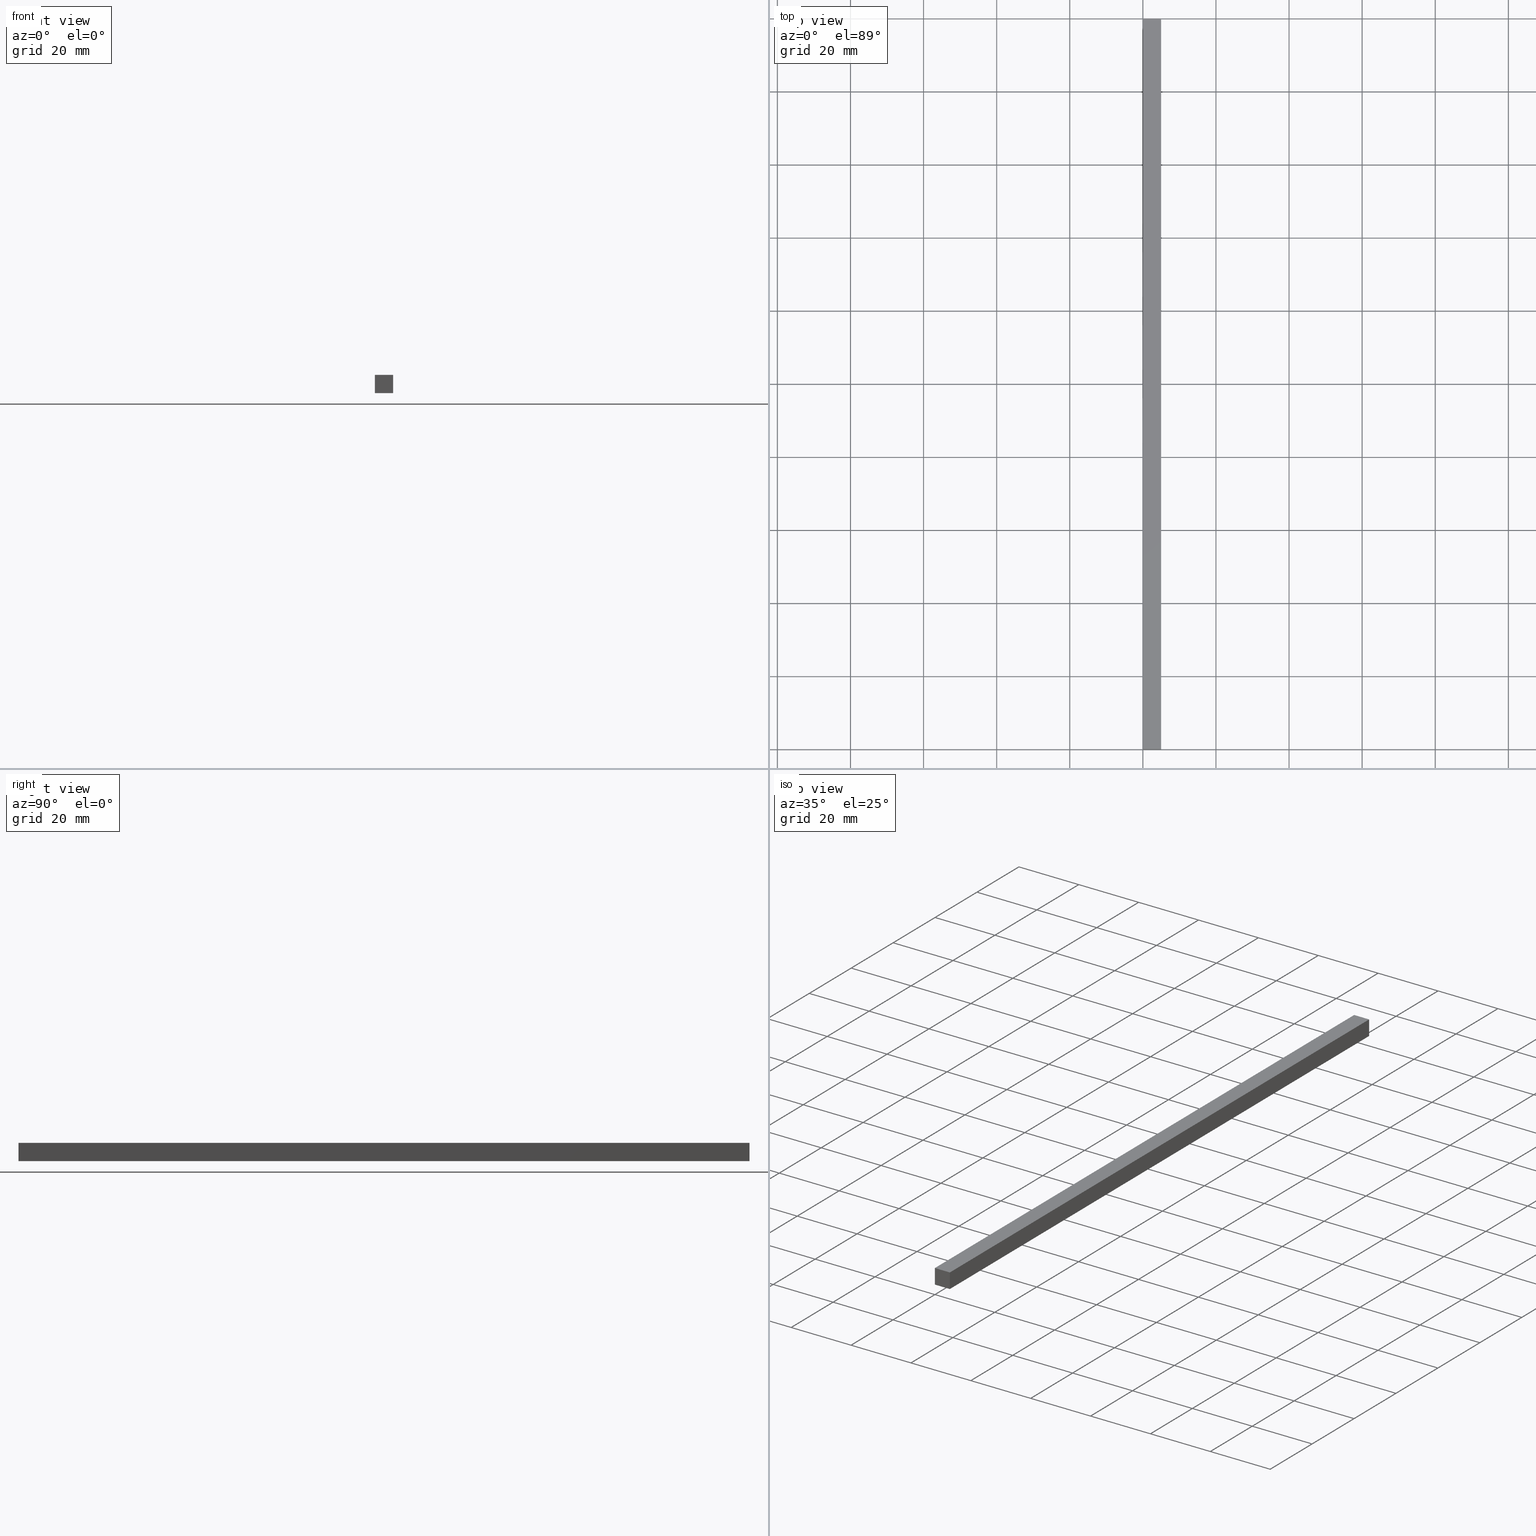
[diagram: canonical four-view strip — front | top / right | iso, engineering-drawing reading convention]
A machine part, canonical four-view strip (front | top / right | iso — engineering-drawing reading convention). The complete STEP part file that produces these views, byte-faithful:
ISO-10303-21;
HEADER;
FILE_DESCRIPTION (( 'STEP AP214' ),
    '1' );
FILE_NAME ('TM_340_1.STEP',
    '2016-05-09T04:52:56',
    ( '' ),
    ( '' ),
    'SwSTEP 2.0',
    'SolidWorks 2015',
    '' );
FILE_SCHEMA (( 'AUTOMOTIVE_DESIGN' ));
ENDSEC;

DATA;
#1 = ADVANCED_FACE ( 'NONE', ( #51 ), #197, .F. ) ;
#2 = ORIENTED_EDGE ( 'NONE', *, *, #146, .T. ) ;
#3 = LINE ( 'NONE', #97, #109 ) ;
#4 = SURFACE_STYLE_FILL_AREA ( #151 ) ;
#5 = CARTESIAN_POINT ( 'NONE',  ( 5.000000000000000000, 0.0000000000000000000, 0.0000000000000000000 ) ) ;
#6 = CARTESIAN_POINT ( 'NONE',  ( 0.0000000000000000000, 200.0000000000000000, 0.0000000000000000000 ) ) ;
#7 = CARTESIAN_POINT ( 'NONE',  ( 0.0000000000000000000, 0.0000000000000000000, 0.0000000000000000000 ) ) ;
#8 = VECTOR ( 'NONE', #236, 1000.000000000000000 ) ;
#9 = CARTESIAN_POINT ( 'NONE',  ( 0.0000000000000000000, 200.0000000000000000, 0.0000000000000000000 ) ) ;
#10 = AXIS2_PLACEMENT_3D ( 'NONE', #189, #136, #106 ) ;
#11 = VECTOR ( 'NONE', #119, 1000.000000000000000 ) ;
#12 = VECTOR ( 'NONE', #64, 1000.000000000000000 ) ;
#13 = EDGE_CURVE ( 'NONE', #90, #204, #47, .T. ) ;
#14 = ADVANCED_FACE ( 'NONE', ( #152 ), #157, .F. ) ;
#15 = ITEM_DEFINED_TRANSFORMATION ( 'NONE', 'NONE', #95,  #10 ) ;
#16 = ORIENTED_EDGE ( 'NONE', *, *, #22, .F. ) ;
#17 = LINE ( 'NONE', #173, #60 ) ;
#18 = STYLED_ITEM ( 'NONE', ( #185 ), #175 ) ;
#19 = DIRECTION ( 'NONE',  ( 0.0000000000000000000, 0.0000000000000000000, 1.000000000000000000 ) ) ;
#20 = LINE ( 'NONE', #121, #12 ) ;
#21 = CARTESIAN_POINT ( 'NONE',  ( 5.000000000000000000, 1000.000000000000000, 0.0000000000000000000 ) ) ;
#22 = EDGE_CURVE ( 'NONE', #30, #212, #214, .T. ) ;
#23 = SURFACE_SIDE_STYLE ('',( #4 ) ) ;
#24 = PRODUCT_CONTEXT ( 'NONE', #180, 'mechanical' ) ;
#25 = CARTESIAN_POINT ( 'NONE',  ( 0.0000000000000000000, 1000.000000000000000, 0.0000000000000000000 ) ) ;
#26 = ORIENTED_EDGE ( 'NONE', *, *, #94, .T. ) ;
#27 = AXIS2_PLACEMENT_3D ( 'NONE', #7, #39, #198 ) ;
#28 = EDGE_CURVE ( 'NONE', #224, #30, #57, .T. ) ;
#29 = ORIENTED_EDGE ( 'NONE', *, *, #13, .T. ) ;
#30 = VERTEX_POINT ( 'NONE', #219 ) ;
#31 = PRESENTATION_LAYER_ASSIGNMENT (  '', '', ( #18 ) ) ;
#32 = EDGE_CURVE ( 'NONE', #212, #237, #221, .T. ) ;
#33 = EDGE_LOOP ( 'NONE', ( #142, #131, #93, #26 ) ) ;
#34 = COLOUR_RGB ( '',0.7921568627450980000, 0.8196078431372548800, 0.9333333333333333500 ) ;
#35 = EDGE_LOOP ( 'NONE', ( #209, #76, #128, #71 ) ) ;
#36 =( NAMED_UNIT ( * ) PLANE_ANGLE_UNIT ( ) SI_UNIT ( $, .RADIAN. ) );
#37 = PLANE ( 'NONE',  #113 ) ;
#38 = CARTESIAN_POINT ( 'NONE',  ( 0.0000000000000000000, 0.0000000000000000000, 0.0000000000000000000 ) ) ;
#39 = DIRECTION ( 'NONE',  ( -0.0000000000000000000, 1.000000000000000000, 0.0000000000000000000 ) ) ;
#40 = DIRECTION ( 'NONE',  ( 0.0000000000000000000, 0.0000000000000000000, 1.000000000000000000 ) ) ;
#41 = EDGE_LOOP ( 'NONE', ( #49, #144, #148, #84 ) ) ;
#42 = CARTESIAN_POINT ( 'NONE',  ( 0.0000000000000000000, 0.0000000000000000000, 5.000000000000000000 ) ) ;
#43 =( GEOMETRIC_REPRESENTATION_CONTEXT ( 3 ) GLOBAL_UNCERTAINTY_ASSIGNED_CONTEXT ( ( #238 ) ) GLOBAL_UNIT_ASSIGNED_CONTEXT ( ( #158, #150, #78 ) ) REPRESENTATION_CONTEXT ( 'NONE', 'WORKASPACE' ) );
#44 = FACE_OUTER_BOUND ( 'NONE', #104, .T. ) ;
#45 = MECHANICAL_DESIGN_GEOMETRIC_PRESENTATION_REPRESENTATION (  '', ( #18 ), #43 ) ;
#46 = DIRECTION ( 'NONE',  ( 1.000000000000000000, 0.0000000000000000000, 0.0000000000000000000 ) ) ;
#47 = LINE ( 'NONE', #107, #72 ) ;
#48 = EDGE_CURVE ( 'NONE', #237, #200, #162, .T. ) ;
#49 = ORIENTED_EDGE ( 'NONE', *, *, #205, .T. ) ;
#50 = LINE ( 'NONE', #5, #8 ) ;
#51 = FACE_OUTER_BOUND ( 'NONE', #41, .T. ) ;
#52 = SHAPE_REPRESENTATION_RELATIONSHIP ( 'NONE' , 'NONE' ,  #171, #175 ) ;
#53 = CARTESIAN_POINT ( 'NONE',  ( 0.0000000000000000000, 0.0000000000000000000, 0.0000000000000000000 ) ) ;
#54 = CARTESIAN_POINT ( 'NONE',  ( 5.000000000000000000, 0.0000000000000000000, 5.000000000000000000 ) ) ;
#55 = DIRECTION ( 'NONE',  ( 1.000000000000000000, 0.0000000000000000000, 0.0000000000000000000 ) ) ;
#56 = DIRECTION ( 'NONE',  ( -0.0000000000000000000, 1.000000000000000000, 0.0000000000000000000 ) ) ;
#57 = LINE ( 'NONE', #154, #11 ) ;
#58 = UNCERTAINTY_MEASURE_WITH_UNIT (LENGTH_MEASURE( 1.000000000000000100E-005 ), #192, 'distance_accuracy_value', 'NONE');
#59 = FILL_AREA_STYLE ('',( #232 ) ) ;
#60 = VECTOR ( 'NONE', #140, 1000.000000000000000 ) ;
#61 = VECTOR ( 'NONE', #194, 1000.000000000000000 ) ;
#62 = DIRECTION ( 'NONE',  ( 0.0000000000000000000, -1.000000000000000000, 0.0000000000000000000 ) ) ;
#63 = APPLICATION_PROTOCOL_DEFINITION ( 'draft international standard', 'automotive_design', 1998, #217 ) ;
#64 = DIRECTION ( 'NONE',  ( 0.0000000000000000000, -1.000000000000000000, 0.0000000000000000000 ) ) ;
#65 =( REPRESENTATION_RELATIONSHIP ('NONE','NONE', #168, #171 ) REPRESENTATION_RELATIONSHIP_WITH_TRANSFORMATION ( #15 )SHAPE_REPRESENTATION_RELATIONSHIP( ) );
#66 = AXIS2_PLACEMENT_3D ( 'NONE', #99, #86, #46 ) ;
#67 = DIRECTION ( 'NONE',  ( 0.0000000000000000000, 0.0000000000000000000, -1.000000000000000000 ) ) ;
#68 = PRODUCT_DEFINITION_SHAPE ( 'NONE', 'NONE',  #132 ) ;
#69 = FACE_OUTER_BOUND ( 'NONE', #182, .T. ) ;
#70 = EDGE_CURVE ( 'NONE', #30, #90, #73, .T. ) ;
#71 = ORIENTED_EDGE ( 'NONE', *, *, #22, .T. ) ;
#72 = VECTOR ( 'NONE', #67, 1000.000000000000000 ) ;
#73 = LINE ( 'NONE', #201, #89 ) ;
#74 = ADVANCED_FACE ( 'NONE', ( #44 ), #37, .T. ) ;
#75 = CARTESIAN_POINT ( 'NONE',  ( 0.0000000000000000000, 0.0000000000000000000, 0.0000000000000000000 ) ) ;
#76 = ORIENTED_EDGE ( 'NONE', *, *, #94, .F. ) ;
#77 = CARTESIAN_POINT ( 'NONE',  ( 5.000000000000000000, 200.0000000000000000, 5.000000000000000000 ) ) ;
#78 =( NAMED_UNIT ( * ) SI_UNIT ( $, .STERADIAN. ) SOLID_ANGLE_UNIT ( ) );
#79 = DIRECTION ( 'NONE',  ( -1.000000000000000000, 0.0000000000000000000, 0.0000000000000000000 ) ) ;
#80 = STYLED_ITEM ( 'NONE', ( #110 ), #130 ) ;
#81 = DIRECTION ( 'NONE',  ( 0.0000000000000000000, 0.0000000000000000000, -1.000000000000000000 ) ) ;
#82 =( LENGTH_UNIT ( ) NAMED_UNIT ( * ) SI_UNIT ( .MILLI., .METRE. ) );
#83 = PRODUCT_CONTEXT ( 'NONE', #217, 'mechanical' ) ;
#84 = ORIENTED_EDGE ( 'NONE', *, *, #137, .T. ) ;
#85 = AXIS2_PLACEMENT_3D ( 'NONE', #75, #123, #55 ) ;
#86 = DIRECTION ( 'NONE',  ( 0.0000000000000000000, 0.0000000000000000000, 1.000000000000000000 ) ) ;
#87 = AXIS2_PLACEMENT_3D ( 'NONE', #213, #228, #115 ) ;
#88 = UNCERTAINTY_MEASURE_WITH_UNIT (LENGTH_MEASURE( 1.000000000000000100E-005 ), #82, 'distance_accuracy_value', 'NONE');
#89 = VECTOR ( 'NONE', #116, 1000.000000000000000 ) ;
#90 = VERTEX_POINT ( 'NONE', #77 ) ;
#91 = SHAPE_DEFINITION_REPRESENTATION ( #163, #168 ) ;
#92 = PRODUCT_DEFINITION_CONTEXT ( 'detailed design', #199, 'design' ) ;
#93 = ORIENTED_EDGE ( 'NONE', *, *, #13, .F. ) ;
#94 = EDGE_CURVE ( 'NONE', #90, #237, #225, .T. ) ;
#95 = AXIS2_PLACEMENT_3D ( 'NONE', #53, #195, #100 ) ;
#96 = PLANE ( 'NONE',  #87 ) ;
#97 = CARTESIAN_POINT ( 'NONE',  ( 5.000000000000000000, 200.0000000000000000, 0.0000000000000000000 ) ) ;
#98 = ORIENTED_EDGE ( 'NONE', *, *, #48, .F. ) ;
#99 = CARTESIAN_POINT ( 'NONE',  ( 5.000000000000000000, 1000.000000000000000, 0.0000000000000000000 ) ) ;
#100 = DIRECTION ( 'NONE',  ( 1.000000000000000000, 0.0000000000000000000, 0.0000000000000000000 ) ) ;
#101 =( NAMED_UNIT ( * ) PLANE_ANGLE_UNIT ( ) SI_UNIT ( $, .RADIAN. ) );
#102 = DIRECTION ( 'NONE',  ( 1.000000000000000000, 0.0000000000000000000, 0.0000000000000000000 ) ) ;
#103 =( NAMED_UNIT ( * ) SI_UNIT ( $, .STERADIAN. ) SOLID_ANGLE_UNIT ( ) );
#104 = EDGE_LOOP ( 'NONE', ( #164, #29, #129, #184 ) ) ;
#105 = CARTESIAN_POINT ( 'NONE',  ( 5.000000000000000000, 0.0000000000000000000, 5.000000000000000000 ) ) ;
#106 = DIRECTION ( 'NONE',  ( 1.000000000000000000, 0.0000000000000000000, 0.0000000000000000000 ) ) ;
#107 = CARTESIAN_POINT ( 'NONE',  ( 5.000000000000000000, 200.0000000000000000, 5.000000000000000000 ) ) ;
#108 =( LENGTH_UNIT ( ) NAMED_UNIT ( * ) SI_UNIT ( .MILLI., .METRE. ) );
#109 = VECTOR ( 'NONE', #79, 1000.000000000000000 ) ;
#110 = PRESENTATION_STYLE_ASSIGNMENT (( #179 ) ) ;
#111 =( GEOMETRIC_REPRESENTATION_CONTEXT ( 3 ) GLOBAL_UNCERTAINTY_ASSIGNED_CONTEXT ( ( #58 ) ) GLOBAL_UNIT_ASSIGNED_CONTEXT ( ( #192, #156, #103 ) ) REPRESENTATION_CONTEXT ( 'NONE', 'WORKASPACE' ) );
#112 = COLOUR_RGB ( '',0.7921568627450980000, 0.8196078431372548800, 0.9333333333333333500 ) ;
#113 = AXIS2_PLACEMENT_3D ( 'NONE', #6, #56, #174 ) ;
#114 = ORIENTED_EDGE ( 'NONE', *, *, #205, .F. ) ;
#115 = DIRECTION ( 'NONE',  ( -1.000000000000000000, 0.0000000000000000000, 0.0000000000000000000 ) ) ;
#116 = DIRECTION ( 'NONE',  ( 1.000000000000000000, 0.0000000000000000000, 0.0000000000000000000 ) ) ;
#117 =( NAMED_UNIT ( * ) SI_UNIT ( $, .STERADIAN. ) SOLID_ANGLE_UNIT ( ) );
#118 = LINE ( 'NONE', #21, #166 ) ;
#119 = DIRECTION ( 'NONE',  ( 0.0000000000000000000, 0.0000000000000000000, 1.000000000000000000 ) ) ;
#120 = SURFACE_STYLE_USAGE ( .BOTH. , #177 ) ;
#121 = CARTESIAN_POINT ( 'NONE',  ( 0.0000000000000000000, 1000.000000000000000, 0.0000000000000000000 ) ) ;
#122 = APPLICATION_PROTOCOL_DEFINITION ( 'draft international standard', 'automotive_design', 1998, #199 ) ;
#123 = DIRECTION ( 'NONE',  ( 0.0000000000000000000, 0.0000000000000000000, 1.000000000000000000 ) ) ;
#124 = AXIS2_PLACEMENT_3D ( 'NONE', #125, #40, #139 ) ;
#125 = CARTESIAN_POINT ( 'NONE',  ( 0.0000000000000000000, 0.0000000000000000000, 0.0000000000000000000 ) ) ;
#126 = FACE_OUTER_BOUND ( 'NONE', #33, .T. ) ;
#127 = PRESENTATION_LAYER_ASSIGNMENT (  '', '', ( #80 ) ) ;
#128 = ORIENTED_EDGE ( 'NONE', *, *, #70, .F. ) ;
#129 = ORIENTED_EDGE ( 'NONE', *, *, #178, .T. ) ;
#130 = MANIFOLD_SOLID_BREP ( '���߰�1', #191 ) ;
#131 = ORIENTED_EDGE ( 'NONE', *, *, #137, .F. ) ;
#132 = PRODUCT_DEFINITION ( 'UNKNOWN', '', #203, #138 ) ;
#133 = CARTESIAN_POINT ( 'NONE',  ( 5.000000000000000000, 0.0000000000000000000, 0.0000000000000000000 ) ) ;
#134 = DIRECTION ( 'NONE',  ( -1.000000000000000000, 0.0000000000000000000, 0.0000000000000000000 ) ) ;
#135 = DIRECTION ( 'NONE',  ( 1.000000000000000000, 0.0000000000000000000, 0.0000000000000000000 ) ) ;
#136 = DIRECTION ( 'NONE',  ( 0.0000000000000000000, 0.0000000000000000000, 1.000000000000000000 ) ) ;
#137 = EDGE_CURVE ( 'NONE', #204, #200, #118, .T. ) ;
#138 = PRODUCT_DEFINITION_CONTEXT ( 'detailed design', #160, 'design' ) ;
#139 = DIRECTION ( 'NONE',  ( 1.000000000000000000, 0.0000000000000000000, 0.0000000000000000000 ) ) ;
#140 = DIRECTION ( 'NONE',  ( 0.0000000000000000000, 0.0000000000000000000, 1.000000000000000000 ) ) ;
#141 = APPLICATION_PROTOCOL_DEFINITION ( 'draft international standard', 'automotive_design', 1998, #180 ) ;
#142 = ORIENTED_EDGE ( 'NONE', *, *, #48, .T. ) ;
#143 = MECHANICAL_DESIGN_GEOMETRIC_PRESENTATION_REPRESENTATION (  '', ( #80 ), #149 ) ;
#144 = ORIENTED_EDGE ( 'NONE', *, *, #188, .F. ) ;
#145 = PRODUCT_DEFINITION_SHAPE ( 'NONE', 'NONE',  #239 ) ;
#146 = EDGE_CURVE ( 'NONE', #169, #212, #17, .T. ) ;
#147 = ADVANCED_FACE ( 'NONE', ( #126 ), #230, .F. ) ;
#148 = ORIENTED_EDGE ( 'NONE', *, *, #178, .F. ) ;
#149 =( GEOMETRIC_REPRESENTATION_CONTEXT ( 3 ) GLOBAL_UNCERTAINTY_ASSIGNED_CONTEXT ( ( #88 ) ) GLOBAL_UNIT_ASSIGNED_CONTEXT ( ( #82, #101, #117 ) ) REPRESENTATION_CONTEXT ( 'NONE', 'WORKASPACE' ) );
#150 =( NAMED_UNIT ( * ) PLANE_ANGLE_UNIT ( ) SI_UNIT ( $, .RADIAN. ) );
#151 = FILL_AREA_STYLE ('',( #211 ) ) ;
#152 = FACE_OUTER_BOUND ( 'NONE', #170, .T. ) ;
#153 = VECTOR ( 'NONE', #216, 1000.000000000000000 ) ;
#154 = CARTESIAN_POINT ( 'NONE',  ( 0.0000000000000000000, 200.0000000000000000, 0.0000000000000000000 ) ) ;
#155 = DIRECTION ( 'NONE',  ( 0.0000000000000000000, -1.000000000000000000, 0.0000000000000000000 ) ) ;
#156 =( NAMED_UNIT ( * ) PLANE_ANGLE_UNIT ( ) SI_UNIT ( $, .RADIAN. ) );
#157 = PLANE ( 'NONE',  #27 ) ;
#158 =( LENGTH_UNIT ( ) NAMED_UNIT ( * ) SI_UNIT ( .MILLI., .METRE. ) );
#159 = CARTESIAN_POINT ( 'NONE',  ( 0.0000000000000000000, 0.0000000000000000000, 5.000000000000000000 ) ) ;
#160 = APPLICATION_CONTEXT ( 'automotive_design' ) ;
#161 = PRODUCT_DEFINITION ( 'UNKNOWN', '', #172, #92 ) ;
#162 = LINE ( 'NONE', #105, #153 ) ;
#163 = PRODUCT_DEFINITION_SHAPE ( 'NONE', 'NONE',  #161 ) ;
#164 = ORIENTED_EDGE ( 'NONE', *, *, #70, .T. ) ;
#165 = VECTOR ( 'NONE', #62, 1000.000000000000000 ) ;
#166 = VECTOR ( 'NONE', #155, 1000.000000000000000 ) ;
#167 = ADVANCED_FACE ( 'NONE', ( #69 ), #231, .F. ) ;
#168 = SHAPE_REPRESENTATION ( 'TM_340_1', ( #124, #95 ), #111 ) ;
#169 = VERTEX_POINT ( 'NONE', #38 ) ;
#170 = EDGE_LOOP ( 'NONE', ( #207, #227, #114, #98 ) ) ;
#171 = SHAPE_REPRESENTATION ( 'rubber foam', ( #10 ), #226 ) ;
#172 = PRODUCT_DEFINITION_FORMATION_WITH_SPECIFIED_SOURCE ( 'ANY', '', #190, .NOT_KNOWN. ) ;
#173 = CARTESIAN_POINT ( 'NONE',  ( 0.0000000000000000000, 0.0000000000000000000, 0.0000000000000000000 ) ) ;
#174 = DIRECTION ( 'NONE',  ( 1.000000000000000000, 0.0000000000000000000, 0.0000000000000000000 ) ) ;
#175 = ADVANCED_BREP_SHAPE_REPRESENTATION ( '', ( #130, #10 ), #226 ) ;
#176 = CARTESIAN_POINT ( 'NONE',  ( 5.000000000000000000, 1000.000000000000000, 5.000000000000000000 ) ) ;
#177 = SURFACE_SIDE_STYLE ('',( #234 ) ) ;
#178 = EDGE_CURVE ( 'NONE', #204, #224, #3, .T. ) ;
#179 = SURFACE_STYLE_USAGE ( .BOTH. , #23 ) ;
#180 = APPLICATION_CONTEXT ( 'automotive_design' ) ;
#181 = APPLICATION_PROTOCOL_DEFINITION ( 'draft international standard', 'automotive_design', 1998, #160 ) ;
#182 = EDGE_LOOP ( 'NONE', ( #2, #16, #206, #233 ) ) ;
#183 = SHAPE_DEFINITION_REPRESENTATION ( #68, #171 ) ;
#184 = ORIENTED_EDGE ( 'NONE', *, *, #28, .T. ) ;
#185 = PRESENTATION_STYLE_ASSIGNMENT (( #120 ) ) ;
#186 = PRODUCT_RELATED_PRODUCT_CATEGORY ( 'part', '', ( #190 ) ) ;
#187 = ADVANCED_FACE ( 'NONE', ( #222 ), #96, .F. ) ;
#188 = EDGE_CURVE ( 'NONE', #224, #169, #20, .T. ) ;
#189 = CARTESIAN_POINT ( 'NONE',  ( 0.0000000000000000000, 0.0000000000000000000, 0.0000000000000000000 ) ) ;
#190 = PRODUCT ( 'TM_340_1', 'TM_340_1', '', ( #83 ) ) ;
#191 = CLOSED_SHELL ( 'NONE', ( #187, #147, #1, #167, #74, #14 ) ) ;
#192 =( LENGTH_UNIT ( ) NAMED_UNIT ( * ) SI_UNIT ( .MILLI., .METRE. ) );
#193 = AXIS2_PLACEMENT_3D ( 'NONE', #176, #134, #19 ) ;
#194 = DIRECTION ( 'NONE',  ( 0.0000000000000000000, -1.000000000000000000, 0.0000000000000000000 ) ) ;
#195 = DIRECTION ( 'NONE',  ( 0.0000000000000000000, 0.0000000000000000000, 1.000000000000000000 ) ) ;
#196 = UNCERTAINTY_MEASURE_WITH_UNIT (LENGTH_MEASURE( 1.000000000000000100E-005 ), #108, 'distance_accuracy_value', 'NONE');
#197 = PLANE ( 'NONE',  #66 ) ;
#198 = DIRECTION ( 'NONE',  ( 1.000000000000000000, 0.0000000000000000000, 0.0000000000000000000 ) ) ;
#199 = APPLICATION_CONTEXT ( 'automotive_design' ) ;
#200 = VERTEX_POINT ( 'NONE', #133 ) ;
#201 = CARTESIAN_POINT ( 'NONE',  ( 0.0000000000000000000, 200.0000000000000000, 5.000000000000000000 ) ) ;
#202 = CONTEXT_DEPENDENT_SHAPE_REPRESENTATION ( #65, #145 ) ;
#203 = PRODUCT_DEFINITION_FORMATION_WITH_SPECIFIED_SOURCE ( 'ANY', '', #223, .NOT_KNOWN. ) ;
#204 = VERTEX_POINT ( 'NONE', #235 ) ;
#205 = EDGE_CURVE ( 'NONE', #200, #169, #50, .T. ) ;
#206 = ORIENTED_EDGE ( 'NONE', *, *, #28, .F. ) ;
#207 = ORIENTED_EDGE ( 'NONE', *, *, #32, .F. ) ;
#208 = VECTOR ( 'NONE', #135, 1000.000000000000000 ) ;
#209 = ORIENTED_EDGE ( 'NONE', *, *, #32, .T. ) ;
#210 = PRODUCT_RELATED_PRODUCT_CATEGORY ( 'part', '', ( #223 ) ) ;
#211 = FILL_AREA_STYLE_COLOUR ( '', #112 ) ;
#212 = VERTEX_POINT ( 'NONE', #159 ) ;
#213 = CARTESIAN_POINT ( 'NONE',  ( 0.0000000000000000000, 1000.000000000000000, 5.000000000000000000 ) ) ;
#214 = LINE ( 'NONE', #218, #165 ) ;
#215 =( NAMED_UNIT ( * ) SI_UNIT ( $, .STERADIAN. ) SOLID_ANGLE_UNIT ( ) );
#216 = DIRECTION ( 'NONE',  ( 0.0000000000000000000, 0.0000000000000000000, -1.000000000000000000 ) ) ;
#217 = APPLICATION_CONTEXT ( 'automotive_design' ) ;
#218 = CARTESIAN_POINT ( 'NONE',  ( 0.0000000000000000000, 1000.000000000000000, 5.000000000000000000 ) ) ;
#219 = CARTESIAN_POINT ( 'NONE',  ( 0.0000000000000000000, 200.0000000000000000, 5.000000000000000000 ) ) ;
#220 = AXIS2_PLACEMENT_3D ( 'NONE', #25, #102, #81 ) ;
#221 = LINE ( 'NONE', #42, #208 ) ;
#222 = FACE_OUTER_BOUND ( 'NONE', #35, .T. ) ;
#223 = PRODUCT ( 'rubber foam', 'rubber foam', '', ( #24 ) ) ;
#224 = VERTEX_POINT ( 'NONE', #9 ) ;
#225 = LINE ( 'NONE', #229, #61 ) ;
#226 =( GEOMETRIC_REPRESENTATION_CONTEXT ( 3 ) GLOBAL_UNCERTAINTY_ASSIGNED_CONTEXT ( ( #196 ) ) GLOBAL_UNIT_ASSIGNED_CONTEXT ( ( #108, #36, #215 ) ) REPRESENTATION_CONTEXT ( 'NONE', 'WORKASPACE' ) );
#227 = ORIENTED_EDGE ( 'NONE', *, *, #146, .F. ) ;
#228 = DIRECTION ( 'NONE',  ( 0.0000000000000000000, 0.0000000000000000000, -1.000000000000000000 ) ) ;
#229 = CARTESIAN_POINT ( 'NONE',  ( 5.000000000000000000, 1000.000000000000000, 5.000000000000000000 ) ) ;
#230 = PLANE ( 'NONE',  #193 ) ;
#231 = PLANE ( 'NONE',  #220 ) ;
#232 = FILL_AREA_STYLE_COLOUR ( '', #34 ) ;
#233 = ORIENTED_EDGE ( 'NONE', *, *, #188, .T. ) ;
#234 = SURFACE_STYLE_FILL_AREA ( #59 ) ;
#235 = CARTESIAN_POINT ( 'NONE',  ( 5.000000000000000000, 200.0000000000000000, 0.0000000000000000000 ) ) ;
#236 = DIRECTION ( 'NONE',  ( -1.000000000000000000, 0.0000000000000000000, 0.0000000000000000000 ) ) ;
#237 = VERTEX_POINT ( 'NONE', #54 ) ;
#238 = UNCERTAINTY_MEASURE_WITH_UNIT (LENGTH_MEASURE( 1.000000000000000100E-005 ), #158, 'distance_accuracy_value', 'NONE');
#239 = NEXT_ASSEMBLY_USAGE_OCCURRENCE ( 'NAUO1', ' ', ' ', #161, #132, $ ) ;
ENDSEC;
END-ISO-10303-21;
